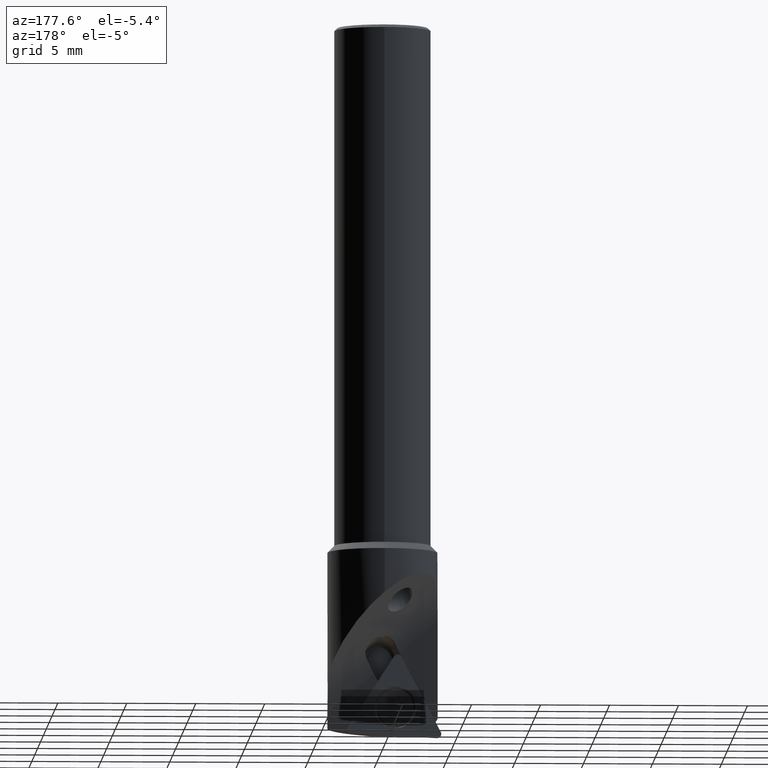
[diagram: clean part render]
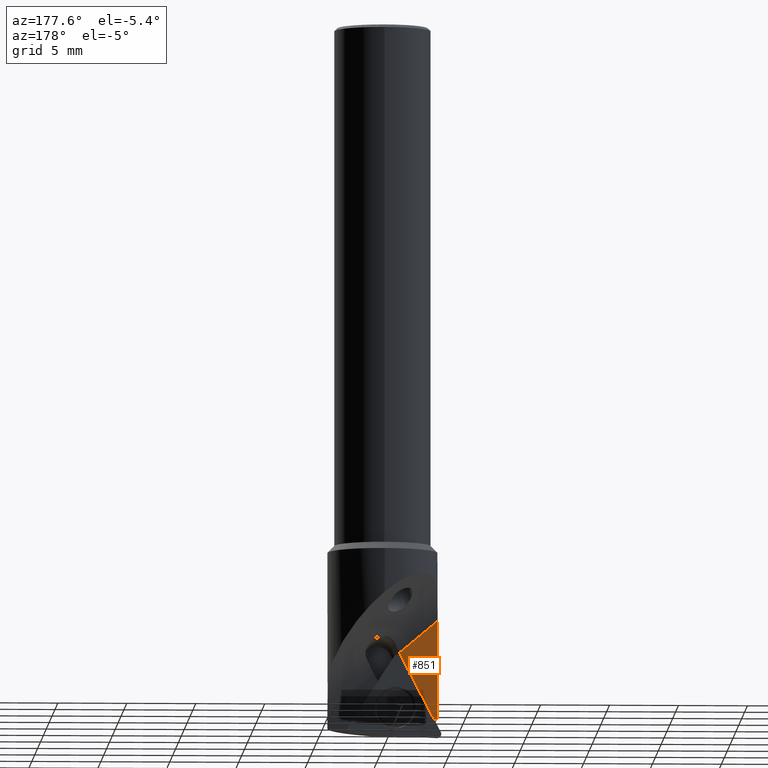
[diagram: same view with one face highlighted and labeled with its STEP entity id]
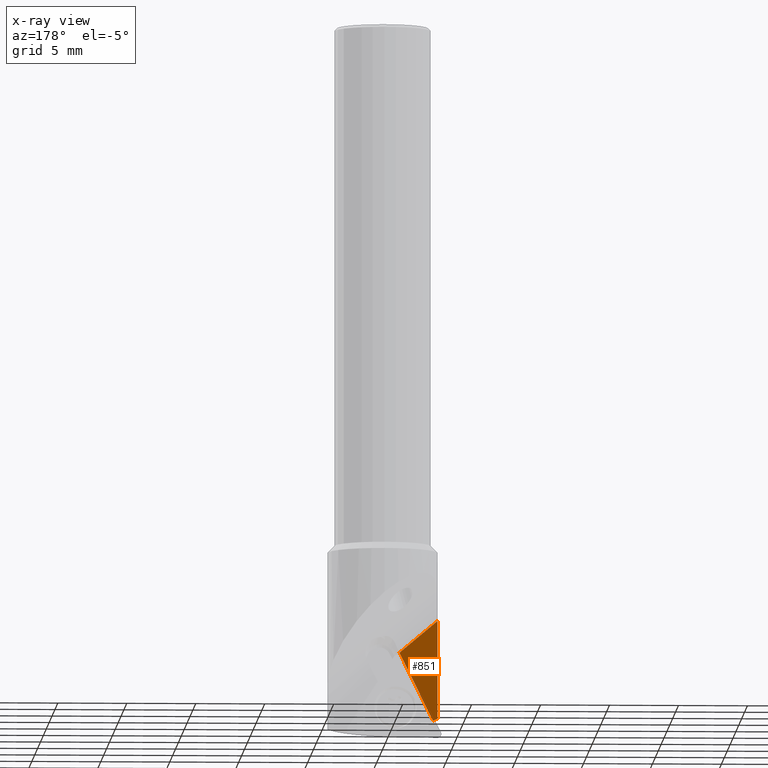
[diagram: x-ray of the same camera — body ghosted, the highlighted face saturated]
A machine part, auxiliary view. The second image highlights one B-rep face of the part: STEP entity #851.
The next image is the same camera in x-ray: the body ghosted, the highlighted face saturated — about 0% of this face is hidden behind the body in this view.
In plain terms, the highlighted planar face has unit normal (0, -1, 0).
Its self-contained STEP definition (entity closure, byte-faithful):
#851=ADVANCED_FACE('NONE',(#2083),#2084,.F.);
#861=VERTEX_POINT('NONE',#2095);
#925=VERTEX_POINT('NONE',#2169);
#999=EDGE_CURVE('NONE',#861,#1669,#2248,.T.);
#1253=VERTEX_POINT('NONE',#2524);
#1321=EDGE_CURVE('NONE',#925,#1669,#2601,.T.);
#1435=EDGE_CURVE('NONE',#1253,#925,#2729,.T.);
#1507=EDGE_CURVE('NONE',#861,#1253,#2809,.T.);
#1669=VERTEX_POINT('NONE',#2990);
#2083=FACE_OUTER_BOUND('',#3531,.T.);
#2084=PLANE('',#3532);
#2095=CARTESIAN_POINT('',(-3.65810013474692,0.199999999999999,-15.7095428707284));
#2169=CARTESIAN_POINT('',(-3.99499687108764,0.2,-8.44779959891602));
#2248=LINE('',#3770,#3771);
#2524=CARTESIAN_POINT('',(-1.23048293729086,0.199999999999999,-10.7675022211493));
#2601=LINE('',#4358,#4359);
#2729=LINE('',#4561,#4562);
#2809=LINE('',#4687,#4688);
#2990=CARTESIAN_POINT('',(-3.99499687108763,0.199999999999999,-15.537229706097));
#3531=EDGE_LOOP('',(#5536,#5537,#5538,#5539));
#3532=AXIS2_PLACEMENT_3D('',#5540,#5541,#5542);
#3770=CARTESIAN_POINT('',(-3.81225502363738,0.199999999999999,-15.6306969993298));
#3771=VECTOR('',#5738,1000.0);
#4358=CARTESIAN_POINT('',(-3.99499687108763,0.2,-1.11022302462516E-017));
#4359=VECTOR('',#6130,1000.0);
#4561=CARTESIAN_POINT('',(11.4906666467847,0.199999999999999,-21.441814145298));
#4562=VECTOR('',#6301,1000.0);
#4687=CARTESIAN_POINT('',(-5.10105399697659,0.199999999999999,-18.6470474534438));
#4688=VECTOR('',#6402,1000.0);
#5536=ORIENTED_EDGE('',*,*,#1321,.F.);
#5537=ORIENTED_EDGE('',*,*,#1435,.F.);
#5538=ORIENTED_EDGE('',*,*,#1507,.F.);
#5539=ORIENTED_EDGE('',*,*,#999,.T.);
#5540=CARTESIAN_POINT('',(4.8177612973609,0.199999999999998,-29.3942730685151));
#5541=DIRECTION('',(0.0,-1.0,5.55111512312578E-017));
#5542=DIRECTION('',(-1.0,0.0,0.0));
#5738=DIRECTION('',(-0.890304528416374,2.52778697243947E-017,0.455365618686015));
#6130=DIRECTION('',(0.0,-5.55111512312578E-017,-1.0));
#6301=DIRECTION('',(-0.766044443118982,3.5681880210888E-017,0.642787609686535));
#6402=DIRECTION('',(0.440896287025215,4.9824480991538E-017,0.897558056109676));